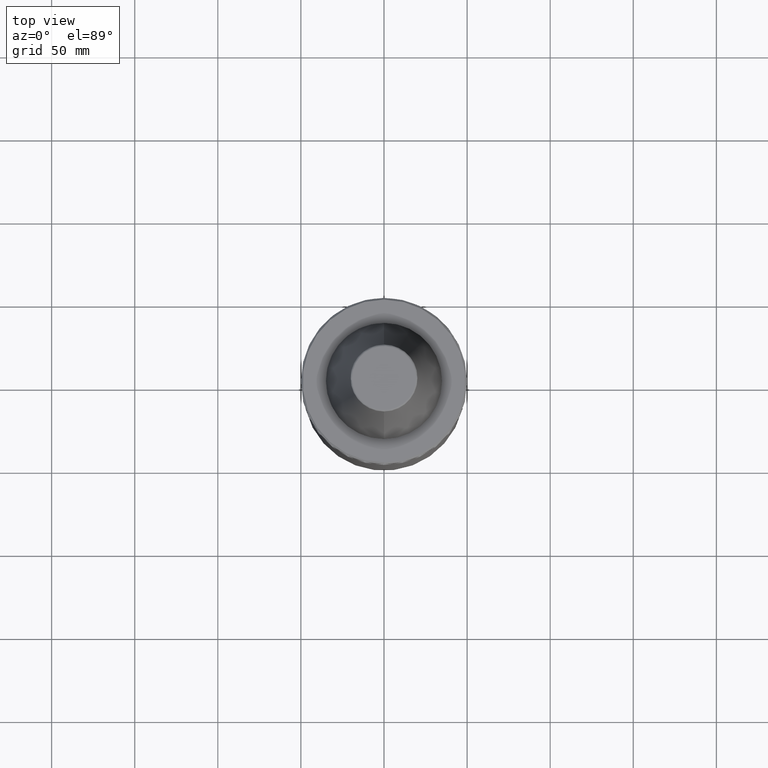
[diagram: clean part render]
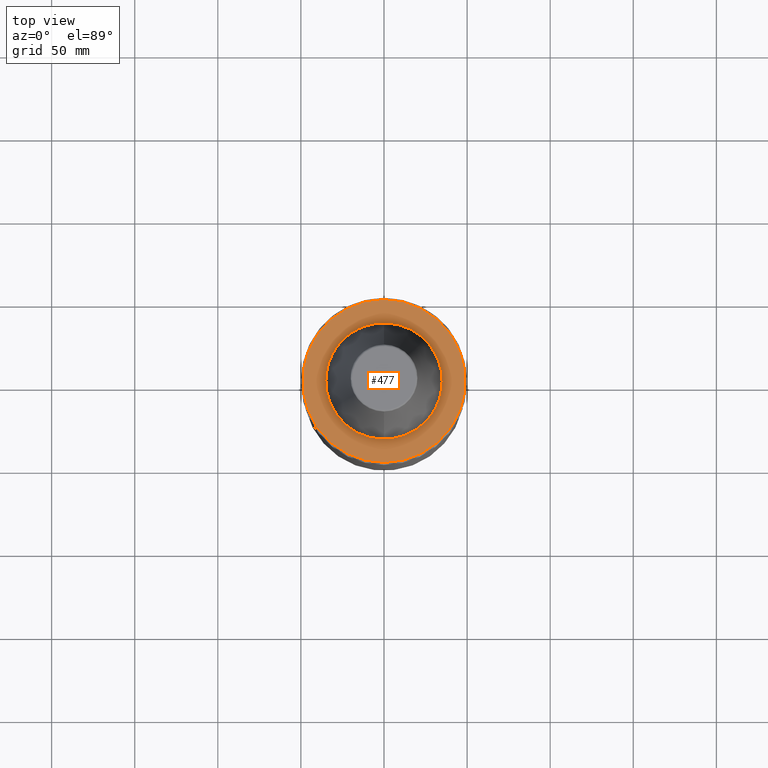
[diagram: same view with one face highlighted and labeled with its STEP entity id]
A machine part, top view. The second image highlights one B-rep face of the part: STEP entity #477.
In plain terms, the highlighted planar face has unit normal (0, 0, -1).
Its self-contained STEP definition (entity closure, byte-faithful):
#213 = AXIS2_PLACEMENT_3D ( 'NONE', #574, #1301, #659 ) ;
#236 = CARTESIAN_POINT ( 'NONE',  ( 35.00000000000000000, -69.99999999999998600, -3.000000000000003100 ) ) ;
#294 = DIRECTION ( 'NONE',  ( 0.0000000000000000000, 8.673617379884035500E-018, -1.000000000000000000 ) ) ;
#317 = CARTESIAN_POINT ( 'NONE',  ( 0.0000000000000000000, 49.00000000000000000, -2.999999999999988500 ) ) ;
#326 = CIRCLE ( 'NONE', #213, 49.00000000000000000 ) ;
#338 = DIRECTION ( 'NONE',  ( 0.0000000000000000000, 0.0000000000000000000, -1.000000000000000000 ) ) ;
#355 = FACE_OUTER_BOUND ( 'NONE', #978, .T. ) ;
#418 =( BOUNDED_CURVE ( )  B_SPLINE_CURVE ( 3, ( #982, #1097, #483, #1197 ),
 .UNSPECIFIED., .F., .F. ) 
 B_SPLINE_CURVE_WITH_KNOTS ( ( 4, 4 ),
 ( 0.0000000000000000000, 1.000000000000000000 ),
 .UNSPECIFIED. ) 
 CURVE ( )  GEOMETRIC_REPRESENTATION_ITEM ( )  RATIONAL_B_SPLINE_CURVE ( ( 1.000000000000000000, 0.3333333333333333700, 0.3333333333333333700, 1.000000000000000000 ) ) 
 REPRESENTATION_ITEM ( '' )  );
#477 = ADVANCED_FACE ( 'NONE', ( #584, #355 ), #713, .F. ) ;
#483 = CARTESIAN_POINT ( 'NONE',  ( -34.99999999999999300, 69.99999999999998600, -3.000000000000003100 ) ) ;
#522 = ORIENTED_EDGE ( 'NONE', *, *, #709, .F. ) ;
#559 =( BOUNDED_CURVE ( )  B_SPLINE_CURVE ( 3, ( #1248, #624, #236, #926 ),
 .UNSPECIFIED., .F., .F. ) 
 B_SPLINE_CURVE_WITH_KNOTS ( ( 4, 4 ),
 ( 0.0000000000000000000, 1.000000000000000000 ),
 .UNSPECIFIED. ) 
 CURVE ( )  GEOMETRIC_REPRESENTATION_ITEM ( )  RATIONAL_B_SPLINE_CURVE ( ( 1.000000000000000000, 0.3333333333333333700, 0.3333333333333333700, 1.000000000000000000 ) ) 
 REPRESENTATION_ITEM ( '' )  );
#574 = CARTESIAN_POINT ( 'NONE',  ( 0.0000000000000000000, -8.673617379884097100E-018, -2.999999999999988900 ) ) ;
#584 = FACE_BOUND ( 'NONE', #1145, .T. ) ;
#601 = AXIS2_PLACEMENT_3D ( 'NONE', #875, #294, #989 ) ;
#624 = CARTESIAN_POINT ( 'NONE',  ( -35.00000000000000700, -69.99999999999998600, -3.000000000000003100 ) ) ;
#659 = DIRECTION ( 'NONE',  ( 0.0000000000000000000, 1.000000000000000000, 8.850629979473505400E-018 ) ) ;
#690 = ORIENTED_EDGE ( 'NONE', *, *, #1074, .F. ) ;
#709 = EDGE_CURVE ( 'NONE', #1050, #738, #326, .T. ) ;
#713 = PLANE ( 'NONE',  #885 ) ;
#738 = VERTEX_POINT ( 'NONE', #1091 ) ;
#770 = ORIENTED_EDGE ( 'NONE', *, *, #1240, .F. ) ;
#820 = CARTESIAN_POINT ( 'NONE',  ( -35.00000000000000000, 5.347315839772332600E-015, -3.000000000000002700 ) ) ;
#828 = VERTEX_POINT ( 'NONE', #980 ) ;
#875 = CARTESIAN_POINT ( 'NONE',  ( 0.0000000000000000000, -8.673617379884097100E-018, -2.999999999999988900 ) ) ;
#883 = ORIENTED_EDGE ( 'NONE', *, *, #1071, .F. ) ;
#885 = AXIS2_PLACEMENT_3D ( 'NONE', #925, #338, #1038 ) ;
#925 = CARTESIAN_POINT ( 'NONE',  ( 0.0000000000000000000, 35.00000000000000000, -3.000000000000002700 ) ) ;
#926 = CARTESIAN_POINT ( 'NONE',  ( 35.00000000000000000, 0.0000000000000000000, -3.000000000000002700 ) ) ;
#947 = CIRCLE ( 'NONE', #601, 49.00000000000000000 ) ;
#978 = EDGE_LOOP ( 'NONE', ( #522, #690 ) ) ;
#980 = CARTESIAN_POINT ( 'NONE',  ( 35.00000000000000000, 0.0000000000000000000, -3.000000000000002700 ) ) ;
#982 = CARTESIAN_POINT ( 'NONE',  ( 35.00000000000000000, 0.0000000000000000000, -3.000000000000002700 ) ) ;
#989 = DIRECTION ( 'NONE',  ( 0.0000000000000000000, 1.000000000000000000, 8.850629979473505400E-018 ) ) ;
#1038 = DIRECTION ( 'NONE',  ( -1.000000000000000000, 0.0000000000000000000, -0.0000000000000000000 ) ) ;
#1050 = VERTEX_POINT ( 'NONE', #317 ) ;
#1071 = EDGE_CURVE ( 'NONE', #828, #1251, #418, .T. ) ;
#1074 = EDGE_CURVE ( 'NONE', #738, #1050, #947, .T. ) ;
#1091 = CARTESIAN_POINT ( 'NONE',  ( 6.062001655779398500E-015, -49.00000000000000000, -2.999999999999989300 ) ) ;
#1097 = CARTESIAN_POINT ( 'NONE',  ( 35.00000000000000000, 69.99999999999998600, -3.000000000000003100 ) ) ;
#1145 = EDGE_LOOP ( 'NONE', ( #770, #883 ) ) ;
#1197 = CARTESIAN_POINT ( 'NONE',  ( -35.00000000000000000, 5.347315839772332600E-015, -3.000000000000002700 ) ) ;
#1240 = EDGE_CURVE ( 'NONE', #1251, #828, #559, .T. ) ;
#1248 = CARTESIAN_POINT ( 'NONE',  ( -35.00000000000000000, 5.347315839772332600E-015, -3.000000000000002700 ) ) ;
#1251 = VERTEX_POINT ( 'NONE', #820 ) ;
#1301 = DIRECTION ( 'NONE',  ( 0.0000000000000000000, 8.673617379884035500E-018, -1.000000000000000000 ) ) ;